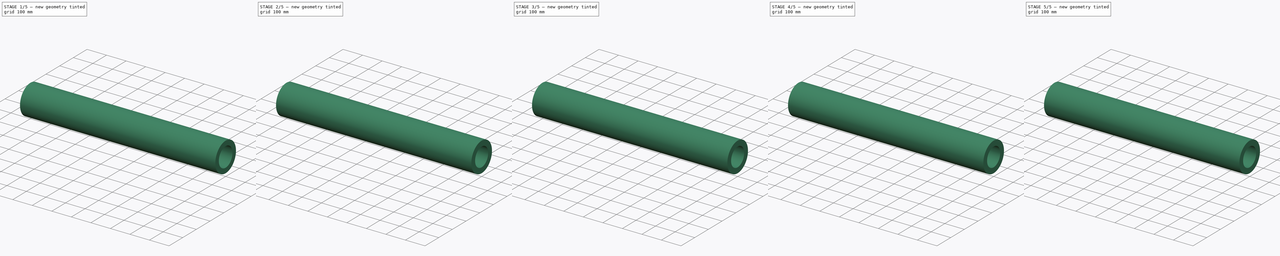
[diagram: build sequence overview — one tinted view per stage of 5, left to right]
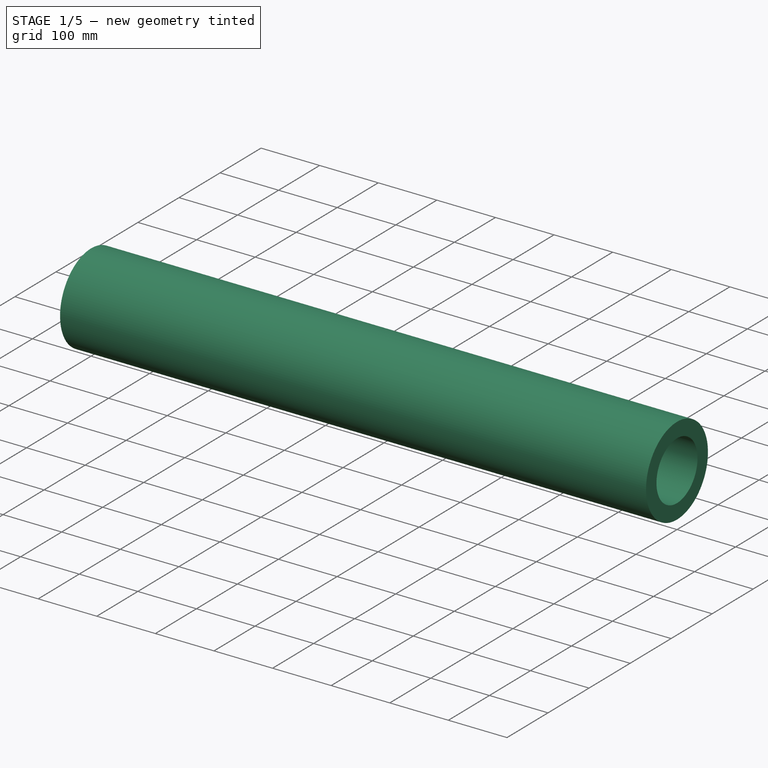
[diagram: stage 1 of 5 — iso view after this stage's code; geometry added in this stage tinted green]
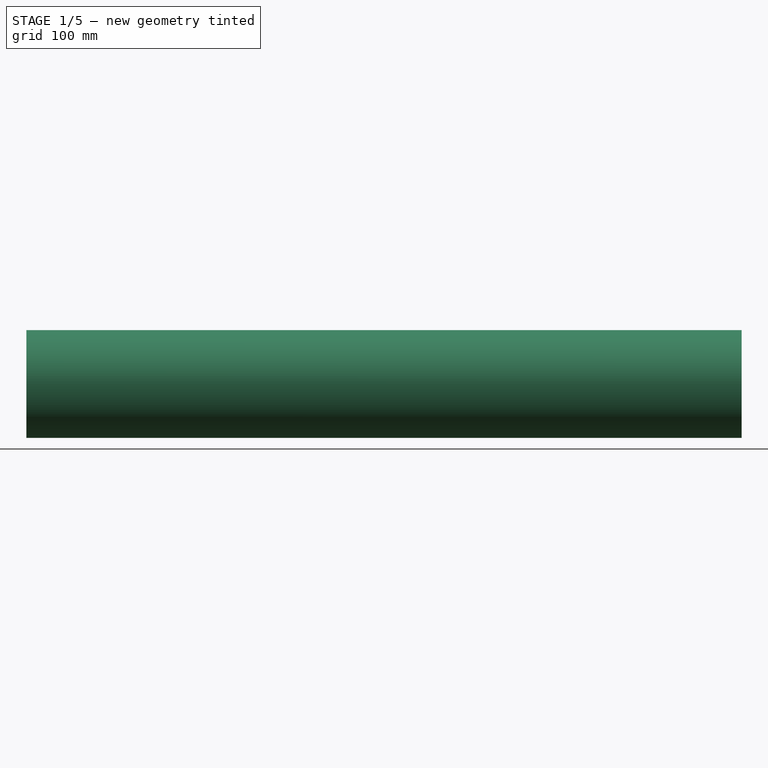
[diagram: stage 1 of 5 — front view after this stage's code; geometry added in this stage tinted green]
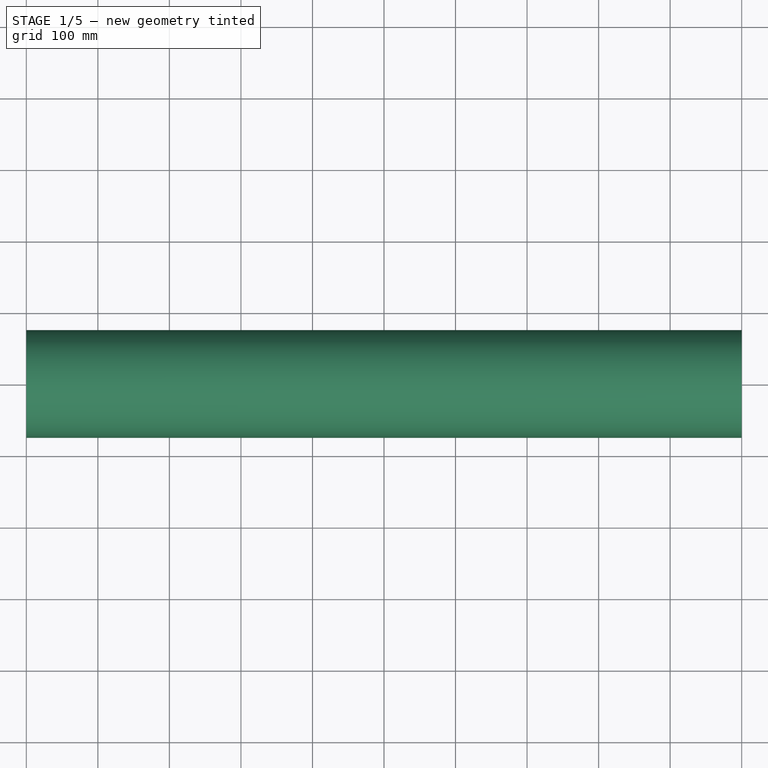
[diagram: stage 1 of 5 — top view after this stage's code; geometry added in this stage tinted green]
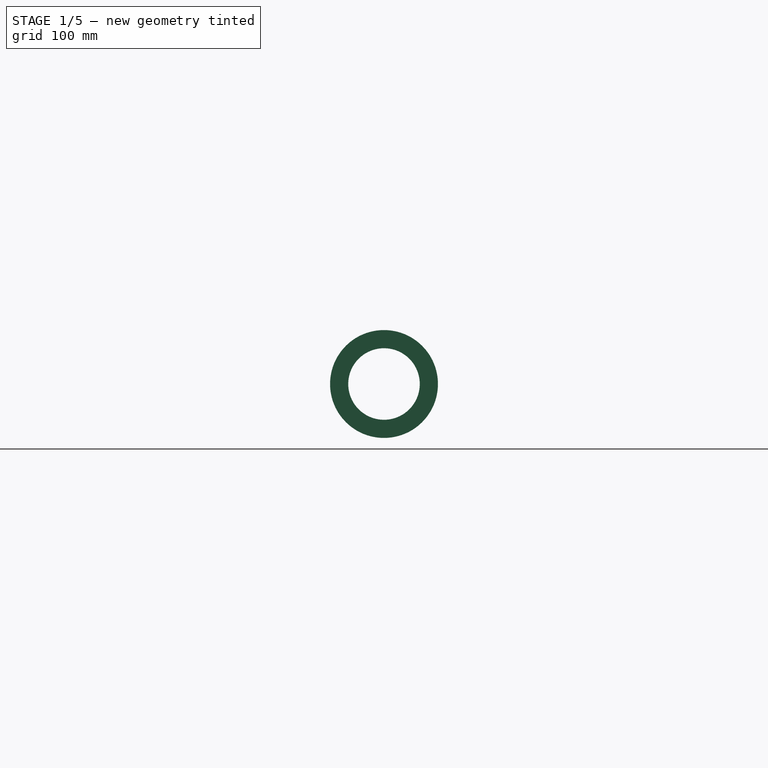
[diagram: stage 1 of 5 — right view after this stage's code; geometry added in this stage tinted green]
FCSTD DOCUMENT  (FreeCAD 0.16R6704 (Git))
Label: Round_pipe_reduction
License: All rights reserved
LicenseURL: http://en.wikipedia.org/wiki/All_rights_reserved
objects: Part::FeaturePython×8, App::DocumentObjectGroup×7, Sketcher::SketchObject×5, Part::Sweep×2, Part::Extrusion×2, Part::Thickness×2, Part::Cut×2, Part::MultiFuse×1, Spreadsheet::Sheet×1
note: 22 computed .brp shape members not serialized (recipe doc carries the construction recipe); baked Part::Feature solids carry a one-line shape summary decoded from their .brp

FEATURE [Sketcher::SketchObject] Sketch047  label="LENGHT_round_pipe"
  expr: Constraints.Pipe_length = Settings_pipe.length_piece
  sketch-geometry (1):
    g0: LineSegment StartX=0 StartY=0 StartZ=0 EndX=1000 EndY=0 EndZ=0
  constraints (3):
    c: Coincident(g0,g-1)
    c: Horizontal(g0)
    c: DistanceX(g0,g0) = 1000  'Pipe_length'
FEATURE [Sketcher::SketchObject] Sketch048  label="RADIUS_circle_01"
  Placement = pos=(0,0,0) rot=(0.57735,0.57735,0.57735;2.0944rad)
  expr: Constraints.Radius_01 = Settings_pipe.r_side_1
  sketch-geometry (1):
    g0: Circle CenterX=0 CenterY=0 CenterZ=0 NormalX=0 NormalY=0 NormalZ=1 Radius=50
  constraints (3):
    c: DistanceY(g-1,g0) = 0  'Distância_vertical_eixo (Vertical_distance_axis)'
    c: DistanceX(g-1,g0) = 0  'Distancia_horizontal_eixo (Horizontal_distance_axis)'
    c: Radius(g0) = 50  'Radius_01'
FEATURE [Part::Sweep] Sweep020  label="Base_01 "
  Frenet = false
  Sections = -> [Sketch048]
  Solid = true
  Spine = -> Sketch047
  Transition = 1
FEATURE [Sketcher::SketchObject] Sketch049  label="RADIUS_circle_02 "
  Placement = pos=(1000,0,0) rot=(0.57735,0.57735,0.57735;2.0944rad)
  Support = -> Sweep020 [Face3]
  expr: Constraints.Radius_02 = Settings_pipe.r_side_2
  sketch-geometry (2):
    g0: GeomPoint [constr] X=0 Y=0 Z=0
    g1: Circle CenterX=0 CenterY=0 CenterZ=0 NormalX=0 NormalY=0 NormalZ=1 Radius=50
  constraints (3):
    c: DistanceY(g-1,g1) = 0  'Distancia_vertical_eixo (Vertical_distance_axis)'
    c: DistanceX(g-1,g1) = 0  'Distância_horizontal_eixo (Horizontal_distance_axis)'
    c: Radius(g1) = 50  'Radius_02'
FEATURE [Part::Sweep] Sweep021  label="Base_02_tube "
  Frenet = false
  Sections = -> [Sketch048,Sketch049]
  Solid = true
  Spine = -> Sketch047 [Edge1]
  Transition = 1
FEATURE [Part::Thickness] Thickness017  label="2.1-Insulation_THICKNESS "
  Faces = -> Sweep021 [Face3,Face2]
  Intersection = false
  Join = 0
  Mode = 0
  SelfIntersection = false
  Value = 25.4
  expr: Value = Settings_pipe.insu_thickness
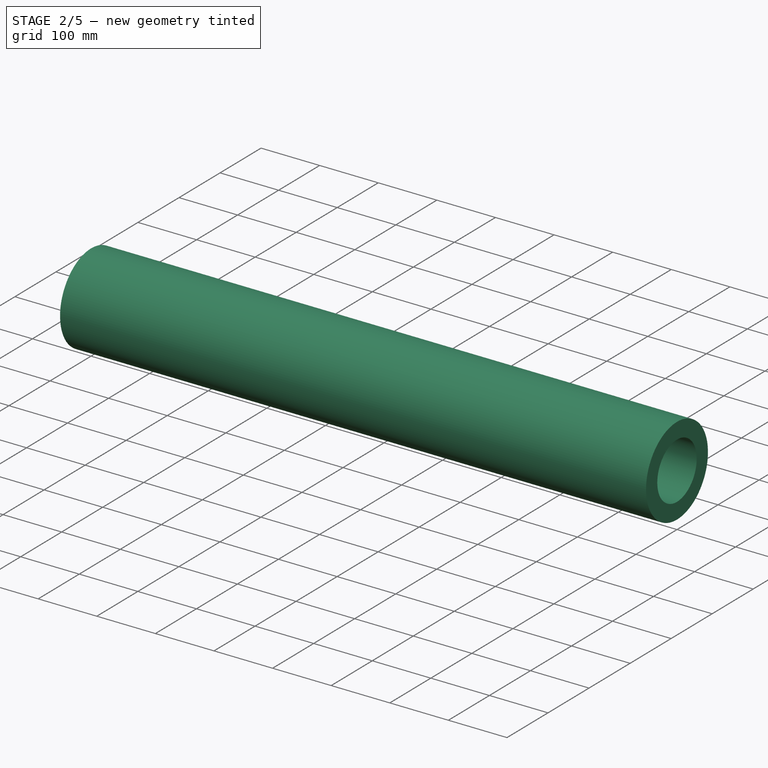
[diagram: stage 2 of 5 — iso view after this stage's code; geometry added in this stage tinted green]
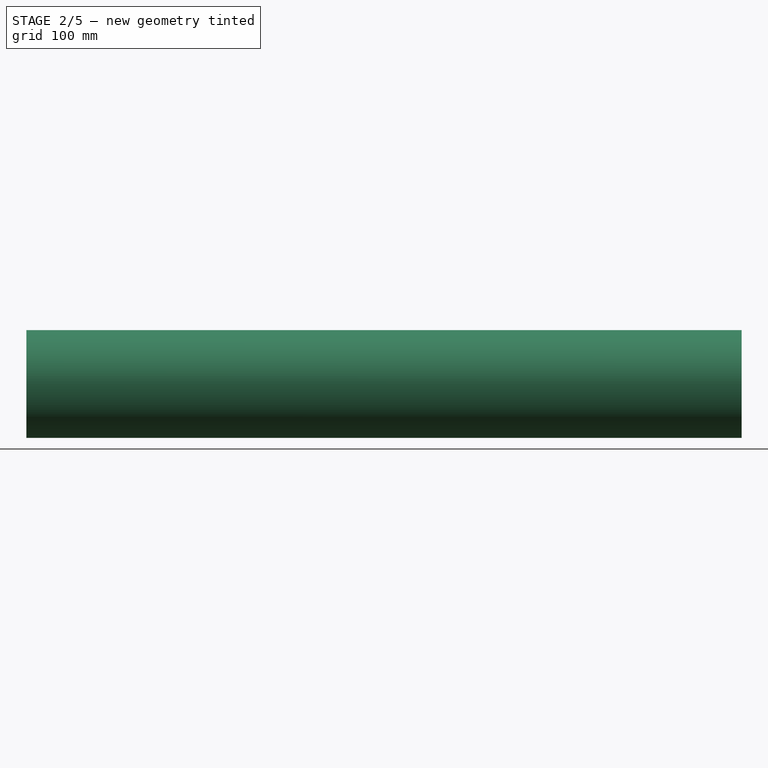
[diagram: stage 2 of 5 — front view after this stage's code; geometry added in this stage tinted green]
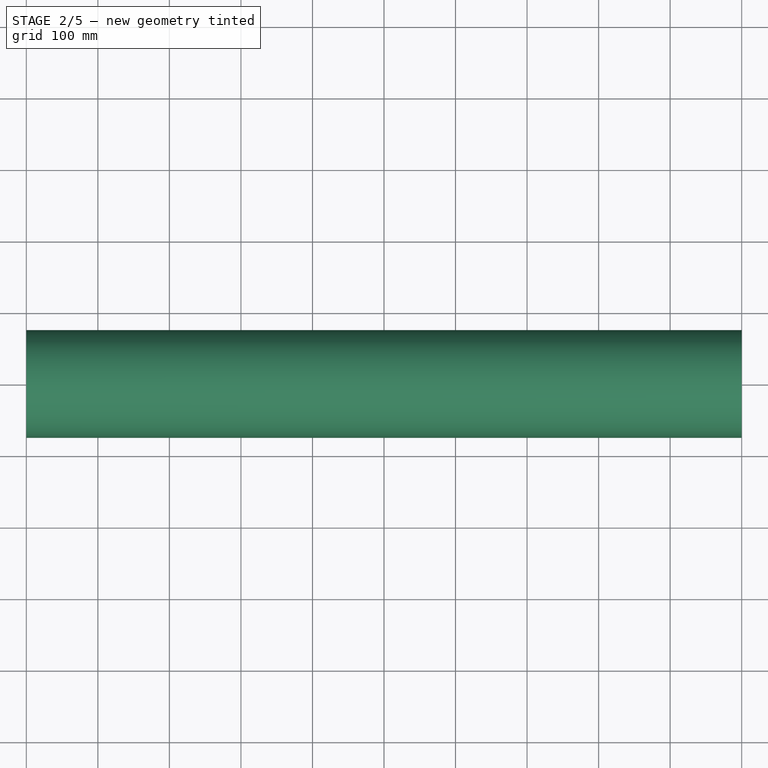
[diagram: stage 2 of 5 — top view after this stage's code; geometry added in this stage tinted green]
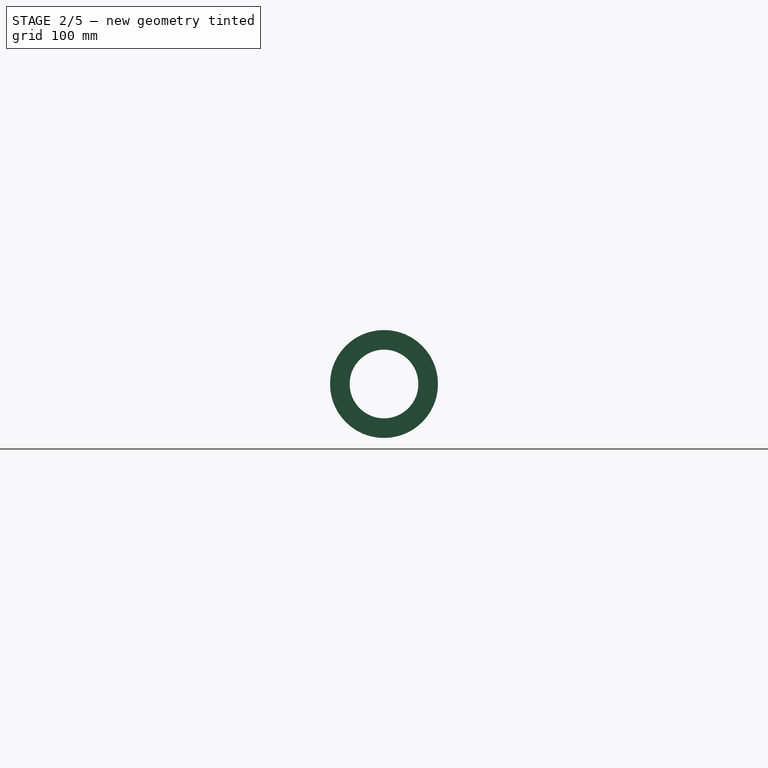
[diagram: stage 2 of 5 — right view after this stage's code; geometry added in this stage tinted green]
FEATURE [Part::Thickness] Thickness016  label="1.1-Round_pipe_SHEET_THICKNESS "
  Faces = -> Sweep021 [Face2,Face3]
  Intersection = false
  Join = 2
  Mode = 0
  SelfIntersection = false
  Value = -2
  expr: Value = Settings_pipe.sheet_thickness * -1
FEATURE [Part::FeaturePython] Clone035  label="Clone of 1.1-Round_pipe_SHEET_THICKNESS "  # Draft clone (typed FeaturePython)
  Objects = -> [Thickness016]
  Scale = (1,1,1)
FEATURE [Part::FeaturePython] Clone036  label="Clone of 2.1-Insulation_THICKNESS"  # Draft clone (typed FeaturePython)
  Objects = -> [Thickness017]
  Scale = (1,1,1)
FEATURE [Part::FeaturePython] Array003  label="2.1.-Insulation_THICKNESS "  # Draft array (typed FeaturePython)
  Angle = 360
  ArrayType = 0
  Axis = (0,0,1)
  Base = -> Clone036
  Center = (0,0,0)
  Fuse = false
  IntervalAxis = (0,0,0)
  IntervalX = (1000,0,0)
  IntervalY = (0,0,0)
  IntervalZ = (0,0,0)
  NumberPolar = 1
  NumberX = 1
  NumberY = 1
  NumberZ = 1
  expr: NumberX = Settings_pipe.n_units
  expr: IntervalX.x = Settings_pipe.length_piece
FEATURE [App::DocumentObjectGroup] Group006  label="A-No_flanges "
  Group = -> [Clone035,Clone036,Array002,Array003]
FEATURE [App::DocumentObjectGroup] Group004  label="B-Final_parts_clones"
  Group = -> [Group006,Group007]
FEATURE [App::DocumentObjectGroup] Grupo021  label="Round_pipe_reduction"
  Group = -> [Spreadsheet,Group008,Group004]
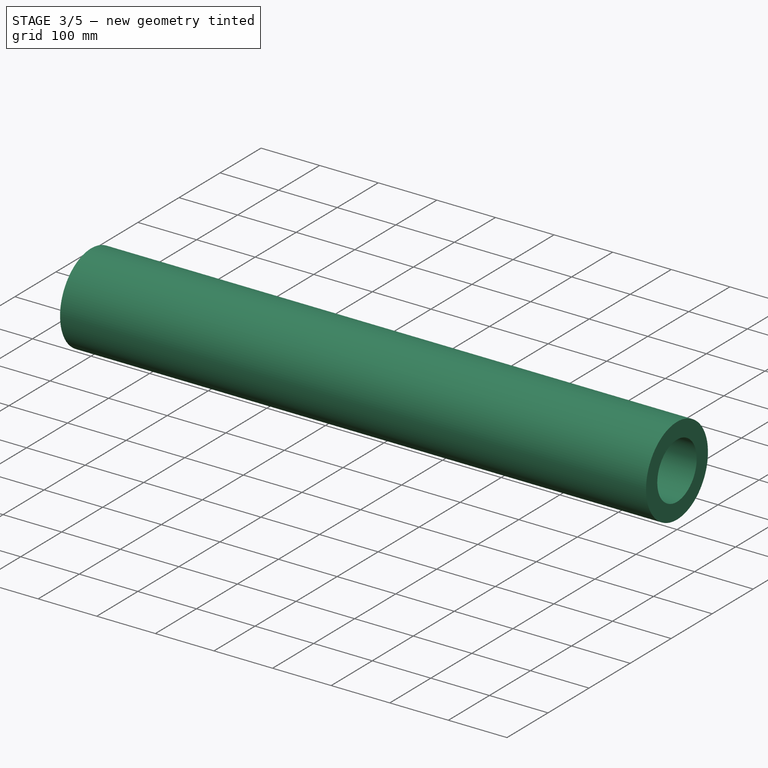
[diagram: stage 3 of 5 — iso view after this stage's code; geometry added in this stage tinted green]
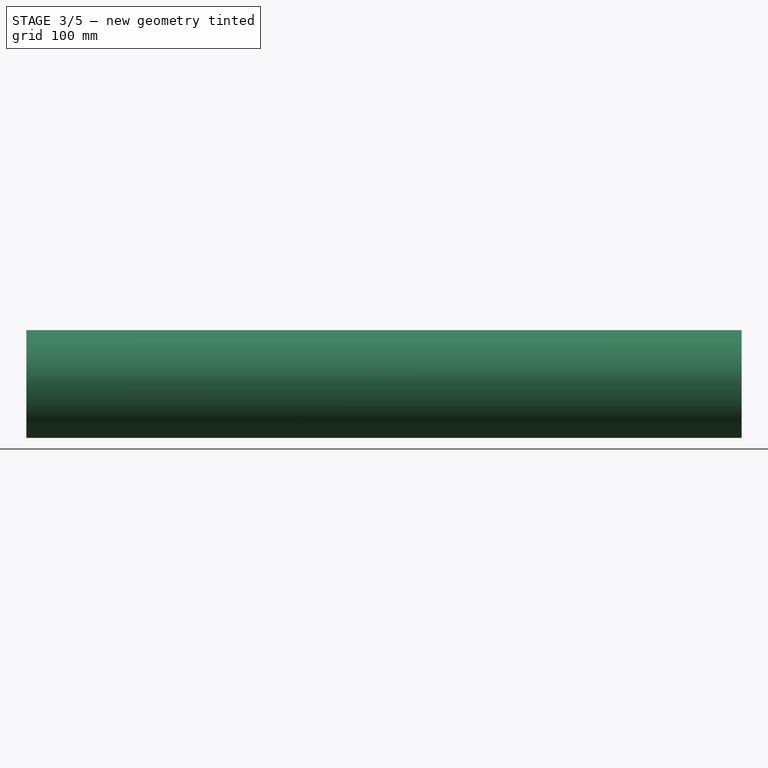
[diagram: stage 3 of 5 — front view after this stage's code; geometry added in this stage tinted green]
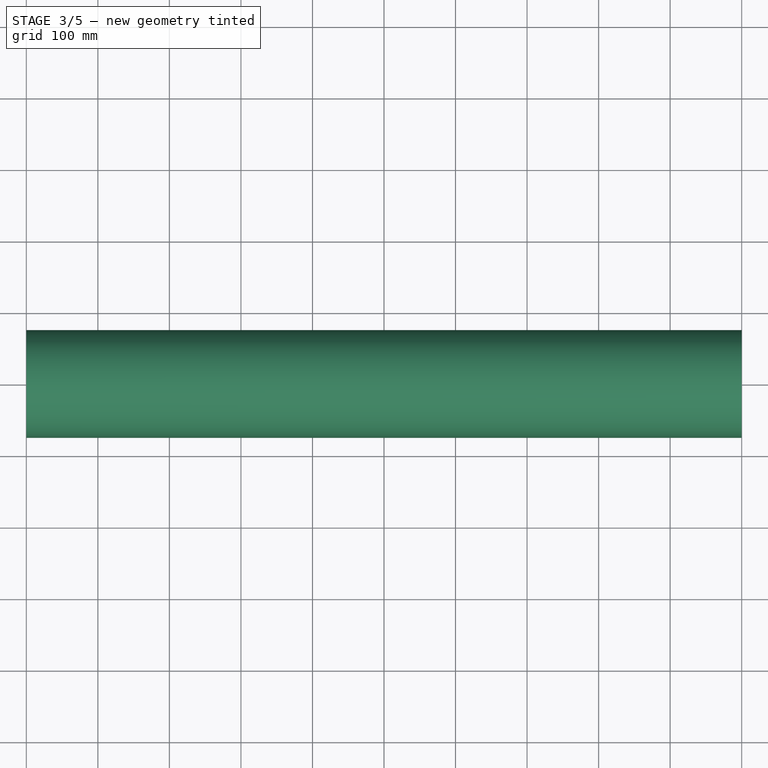
[diagram: stage 3 of 5 — top view after this stage's code; geometry added in this stage tinted green]
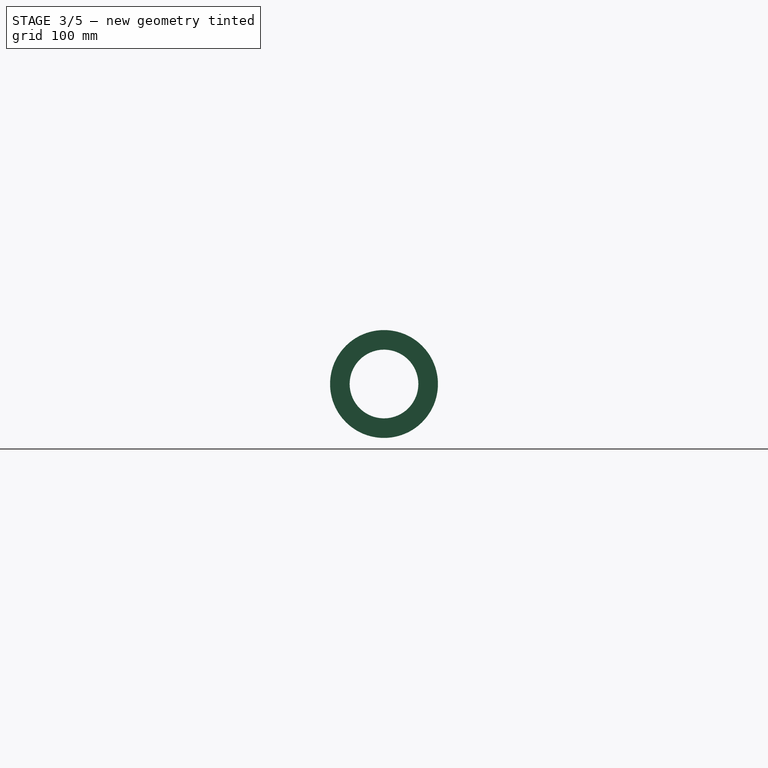
[diagram: stage 3 of 5 — right view after this stage's code; geometry added in this stage tinted green]
FEATURE [Sketcher::SketchObject] Sketch050  label="FLANGE_HEIGHT_01"
  ExternalGeometry = -> [Sweep020]
  Placement = pos=(0,0,0) rot=(0.57735,-0.57735,-0.57735;2.0944rad)
  Support = -> Sweep020 [Face2]
  expr: Constraints.Flange_01 = Settings_pipe.flange_height
  sketch-geometry (3):
    g0: Circle CenterX=0 CenterY=0 CenterZ=0 NormalX=0 NormalY=0 NormalZ=1 Radius=50
    g1: Circle CenterX=0 CenterY=0 CenterZ=0 NormalX=0 NormalY=0 NormalZ=1 Radius=65
    g2: LineSegment [constr] StartX=-50 StartY=0 StartZ=0 EndX=-65 EndY=-3e-12 EndZ=0
  constraints (8):
    c: Coincident(g0,g-1)
    c: Coincident(g1,g-1)
    c: Equal(g-3,g0)
    c: PointOnObject(g2,g-3)
    c: PointOnObject(g2,g1)
    c: Angle(g2) = 3.14159
    c: DistanceX(g2,g2) = 15  'Flange_01'
    c: DistanceY(g2,g-1) = 0
FEATURE [Part::Extrusion] Extrude_Sketch045  label="Flange_THICKNESS_01 "
  Base = -> Sketch050
  Dir = (2,0,0)
  Solid = true
  expr: Dir.x = Settings_pipe.flange_thickness
FEATURE [App::DocumentObjectGroup] Group002  label="A-Bases "
  Group = -> [Sketch047,Sweep020]
FEATURE [Part::Cut] Cut010  label="Cut "
  Base = -> Thickness017
  Tool = -> Extrude_Sketch045
FEATURE [App::DocumentObjectGroup] Group007  label="B-Flanged "
  Group = -> [Clone033,Clone034,Array,Array001]
FEATURE [Part::FeaturePython] Array002  label="1.1-Round_pipe_SHEET_THICKNESS 001"  # Draft array (typed FeaturePython)
  Angle = 360
  ArrayType = 0
  Axis = (0,0,1)
  Base = -> Clone035
  Center = (0,0,0)
  Fuse = false
  IntervalAxis = (0,0,0)
  IntervalX = (1000,0,0)
  IntervalY = (0,0,0)
  IntervalZ = (0,0,0)
  NumberPolar = 1
  NumberX = 1
  NumberY = 1
  NumberZ = 1
  expr: NumberX = Settings_pipe.n_units
  expr: IntervalX.x = Settings_pipe.length_piece
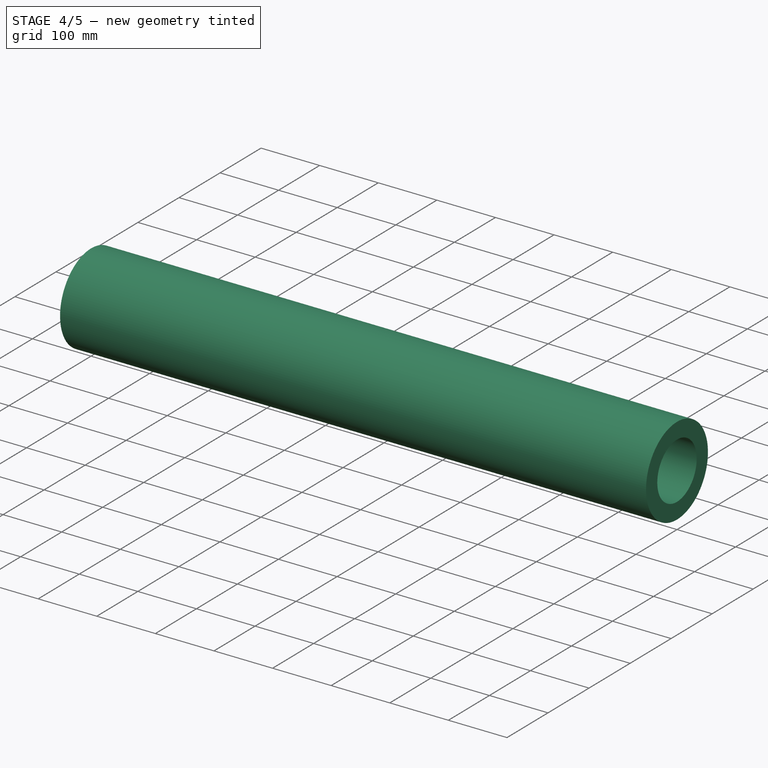
[diagram: stage 4 of 5 — iso view after this stage's code; geometry added in this stage tinted green]
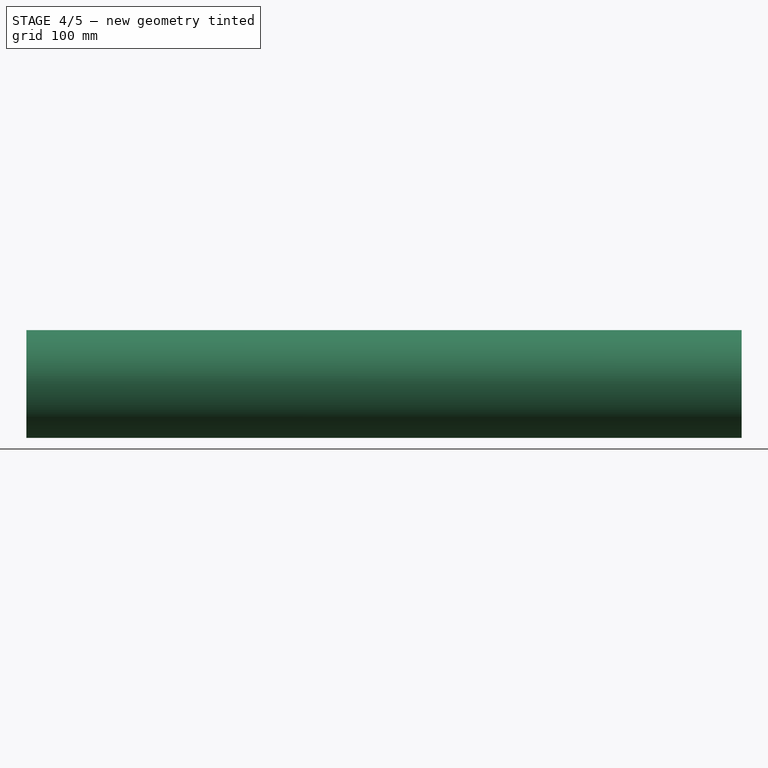
[diagram: stage 4 of 5 — front view after this stage's code; geometry added in this stage tinted green]
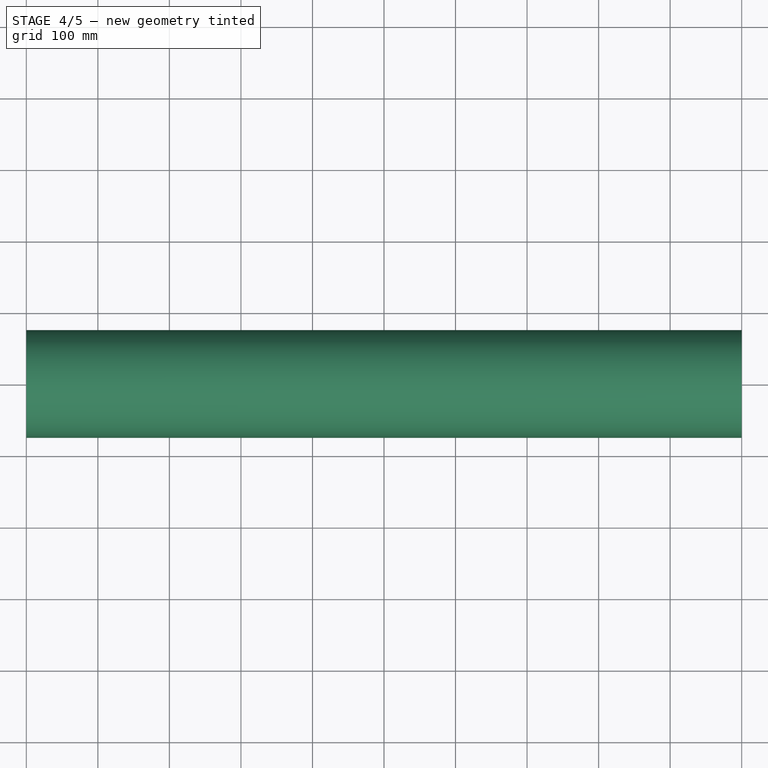
[diagram: stage 4 of 5 — top view after this stage's code; geometry added in this stage tinted green]
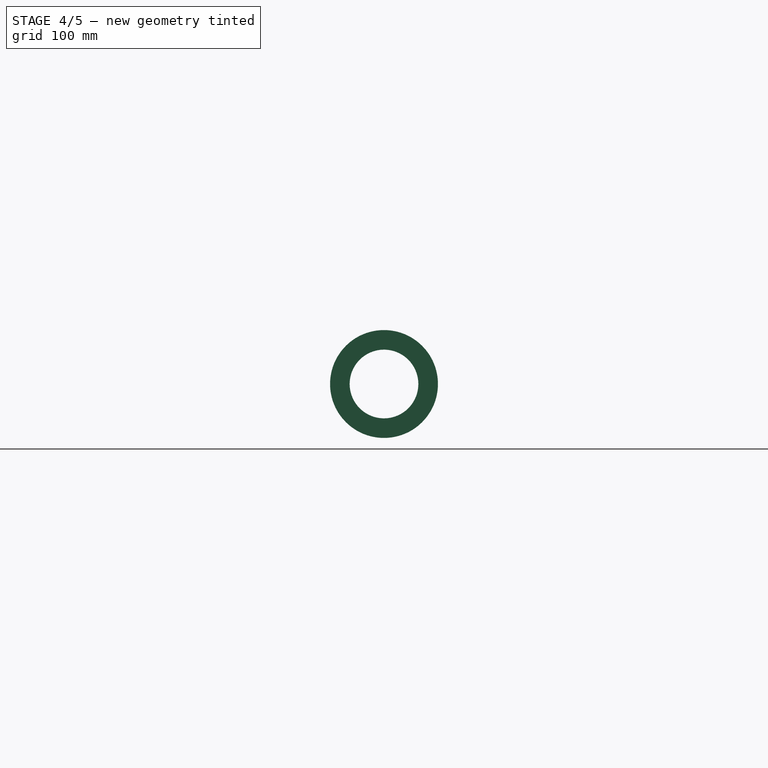
[diagram: stage 4 of 5 — right view after this stage's code; geometry added in this stage tinted green]
FEATURE [Sketcher::SketchObject] Sketch051  label="FLANGE_HEIGHT_02 "
  ExternalGeometry = -> [Sweep021]
  Placement = pos=(1000,0,0) rot=(0.57735,0.57735,0.57735;2.0944rad)
  Support = -> Sweep021 [Face3]
  expr: Constraints.Flange_02 = Settings_pipe.flange_height
  sketch-geometry (4):
    g0: Circle CenterX=0 CenterY=0 CenterZ=0 NormalX=0 NormalY=0 NormalZ=1 Radius=50
    g1: Circle CenterX=0 CenterY=0 CenterZ=0 NormalX=0 NormalY=0 NormalZ=1 Radius=65
    g2: LineSegment [constr] StartX=-44.9037 StartY=-46.9964 StartZ=0 EndX=-34.5413 EndY=-36.1511 EndZ=0
    g3: LineSegment [constr] StartX=-34.5413 StartY=-36.1511 StartZ=0 EndX=0 EndY=0 EndZ=0
  constraints (8):
    c: Equal(g0,g-3)
    c: PointOnObject(g2,g1)
    c: PointOnObject(g2,g-3)
    c: Coincident(g3,g2)
    c: Coincident(g3,g-1)
    c: Angle(g2,g3) = 3.14159
    c: Coincident(g1,g-1)  'Constraint7'
    c: Distance(g2) = 15  'Flange_02'
FEATURE [Part::Extrusion] Extrude_Sketch047  label="Flange_THICKNESS_02 "
  Base = -> Sketch051
  Dir = (-2,0,0)
  Solid = true
  expr: Dir.x = Settings_pipe.flange_thickness * -1
FEATURE [Part::Cut] Cut011  label="02-Insulation "
  Base = -> Cut010
  Tool = -> Extrude_Sketch047
FEATURE [Part::FeaturePython] Clone034  label="Clone of 02-Insulation "  # Draft clone (typed FeaturePython)
  Objects = -> [Cut011]
  Scale = (1,1,1)
FEATURE [Part::FeaturePython] Array001  label="Insulation "  # Draft array (typed FeaturePython)
  Angle = 360
  ArrayType = 0
  Axis = (0,0,1)
  Base = -> Clone034
  Center = (0,0,0)
  Fuse = false
  IntervalAxis = (0,0,0)
  IntervalX = (1000,0,0)
  IntervalY = (0,0,0)
  IntervalZ = (0,0,0)
  NumberPolar = 1
  NumberX = 1
  NumberY = 1
  NumberZ = 1
  expr: NumberX = Settings_pipe.n_units
  expr: IntervalX.x = Settings_pipe.length_piece
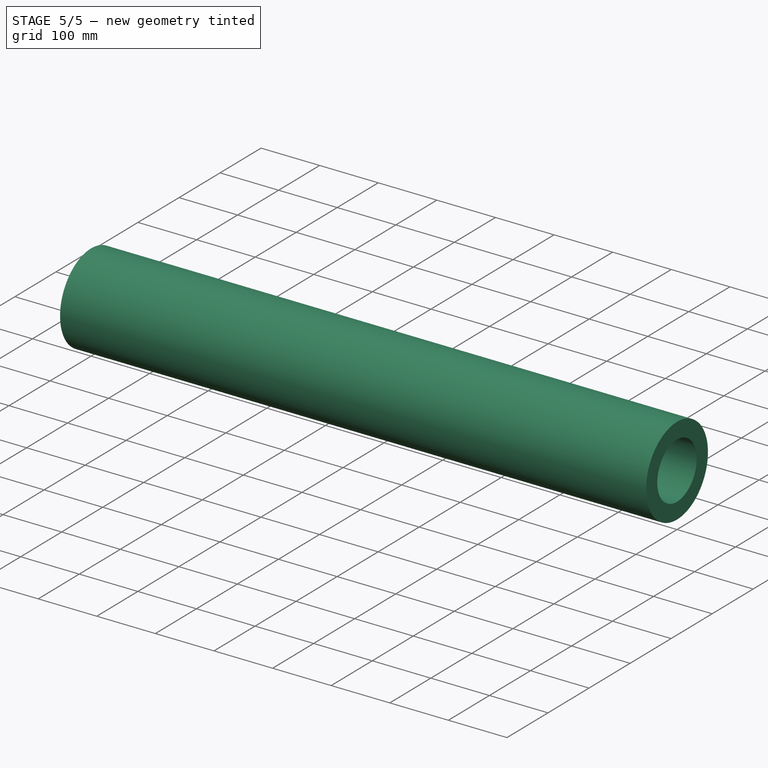
[diagram: stage 5 of 5 — iso view after this stage's code; geometry added in this stage tinted green]
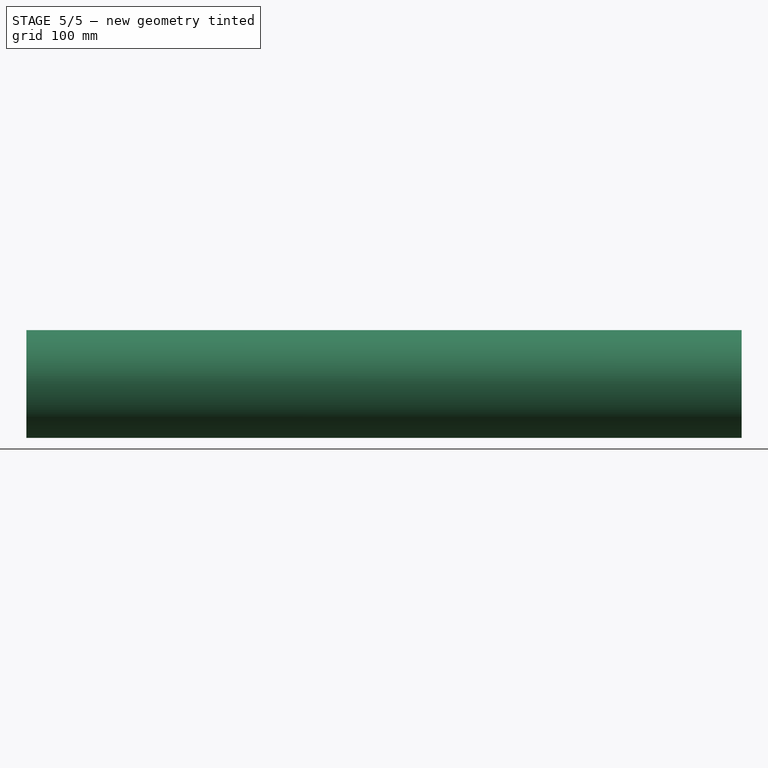
[diagram: stage 5 of 5 — front view after this stage's code; geometry added in this stage tinted green]
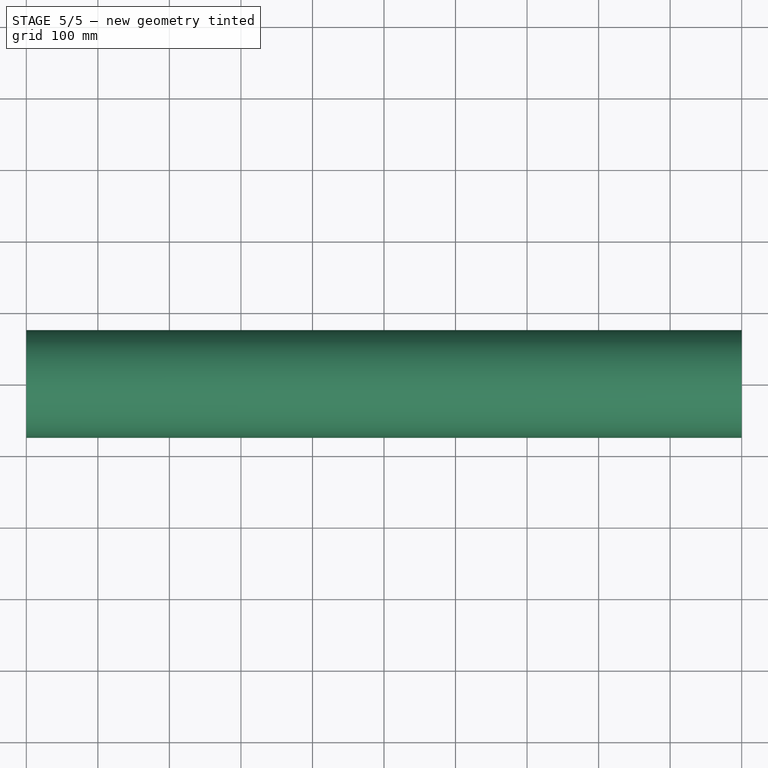
[diagram: stage 5 of 5 — top view after this stage's code; geometry added in this stage tinted green]
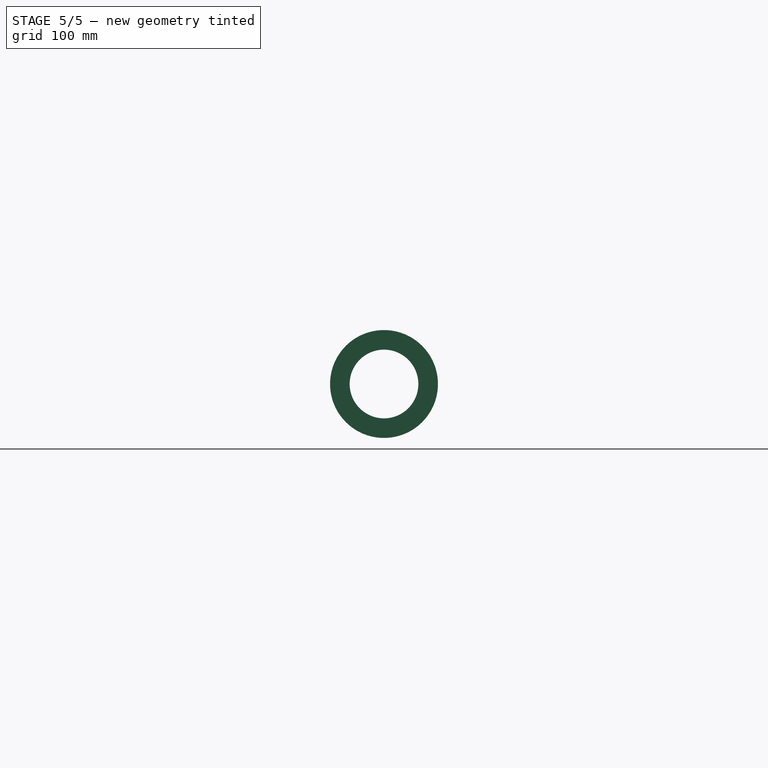
[diagram: stage 5 of 5 — right view after this stage's code; geometry added in this stage tinted green]
FEATURE [Part::MultiFuse] Fusion004  label="01-Tubo_redondo_flangeado (Round_pipe_flanged)"
  Shapes = -> [Thickness016,Extrude_Sketch045,Extrude_Sketch047]
FEATURE [App::DocumentObjectGroup] Group003  label="B-Partes (Parts) "
  Group = -> [Fusion004,Cut011]
FEATURE [Part::FeaturePython] Clone033  label="Clone of 01-Round_pipe_flanged "  # Draft clone (typed FeaturePython)
  Objects = -> [Fusion004]
  Scale = (1,1,1)
FEATURE [App::DocumentObjectGroup] Group008  label="A-Components"
  Group = -> [Group002,Group003]
FEATURE [Spreadsheet::Sheet] Spreadsheet  label="Settings_pipe"
  cells = A1=Dimensionamento - Settings; D2=Comprimento total _Total lenght; A3=01. Comprimento da peça - Piece length:; B3(length_piece)=1000; C3=Alias: length_piece; D3==B3 * B19; A5=02. Lado 1 - Side 1; A6=2.1. Raio do lado 1 - Radius side 1:; B6(r_side_1)=50; C6=Alias: r_side_1; A8=03. Lado 2 - Side 2; A9=3.1. Raio do lado 2 - Radius side 2:; B9(r_side_2)=50; C9=Alias: r_side_2; A11=04. Espessura da chapa - Sheet thickness:; B11(sheet_thickness)=2; C11=Alias: sheet_thickness; A13=05. Flanges; A14=5.1. Altura flanges - Flanges height:; B14(flange_height)=15; C14=Alias: flange_height; A15=5.2. Espessura flanges - Flanges thickness:; B15(flange_thickness)=2; C15=Alias: flange_thickness; A17=06. Espessura isolamento - Insulation thickness:; B17(insu_thickness)=25.4; C17=Alias: insu_thickness; A19=07. Número de repetições - Number of repetitions:; B19(n_units)=1; C19=Alias: n_units
FEATURE [Part::FeaturePython] Array  label="Round_pipe_flanged "  # Draft array (typed FeaturePython)
  Angle = 360
  ArrayType = 0
  Axis = (0,0,1)
  Base = -> Clone033
  Center = (0,0,0)
  Fuse = false
  IntervalAxis = (0,0,0)
  IntervalX = (1000,0,0)
  IntervalY = (0,0,0)
  IntervalZ = (0,0,0)
  NumberPolar = 1
  NumberX = 1
  NumberY = 1
  NumberZ = 1
  expr: NumberX = Settings_pipe.n_units
  expr: IntervalX.x = Settings_pipe.length_piece
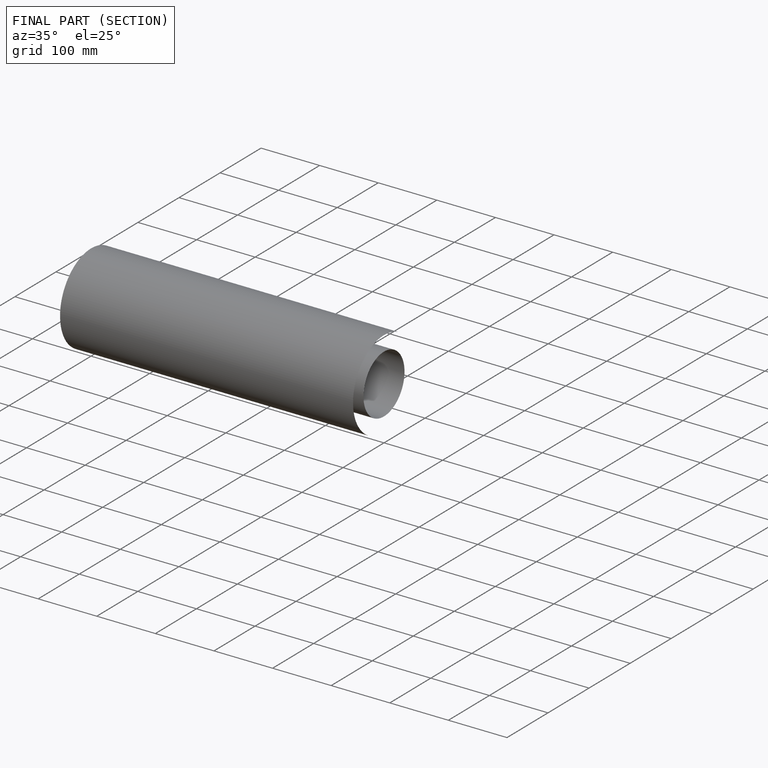
[diagram: finished part — half-section view (interior)]
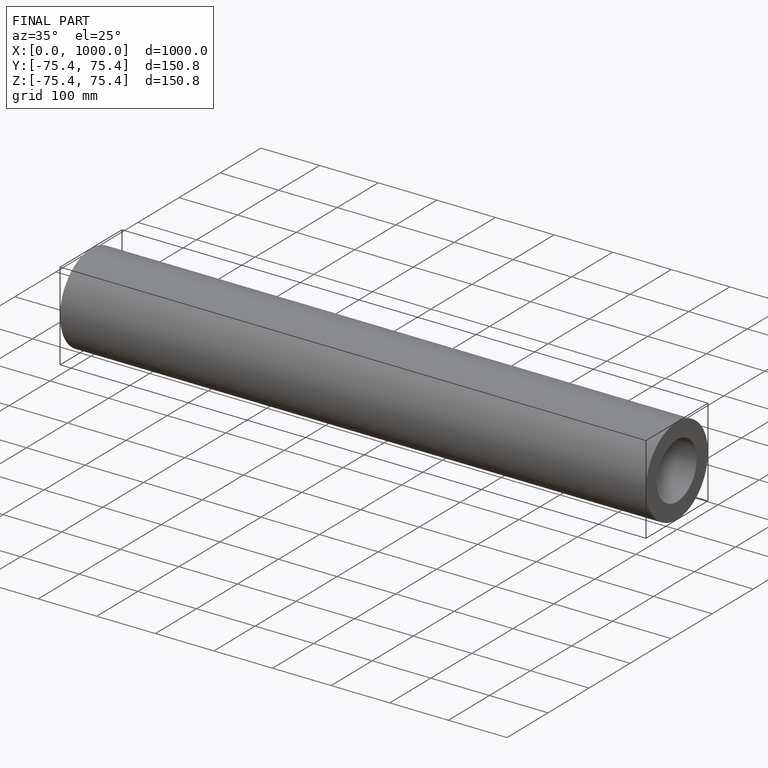
[diagram: finished part — iso view with bounding-box wireframe]
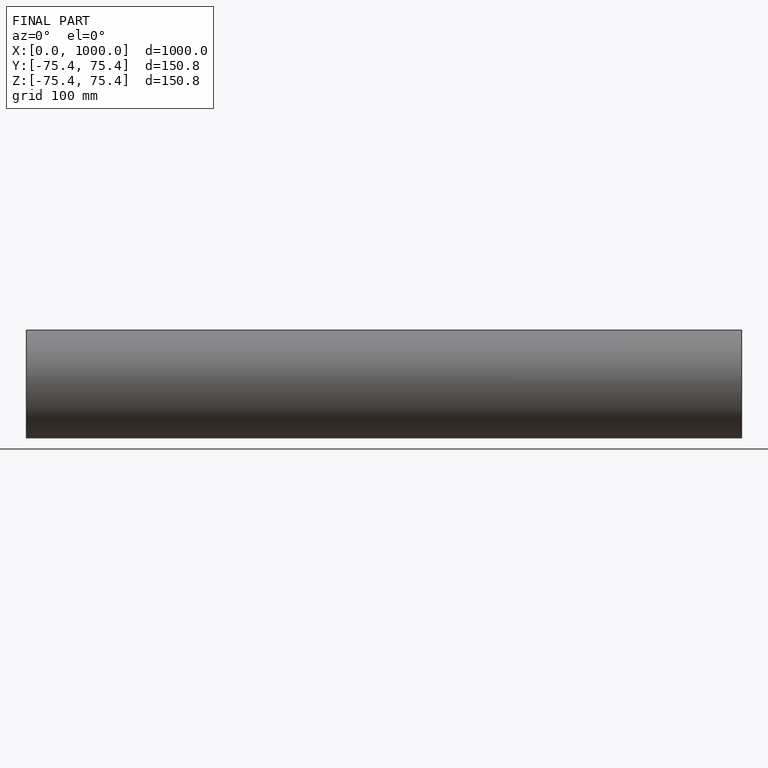
[diagram: finished part — front view with bounding-box wireframe]
